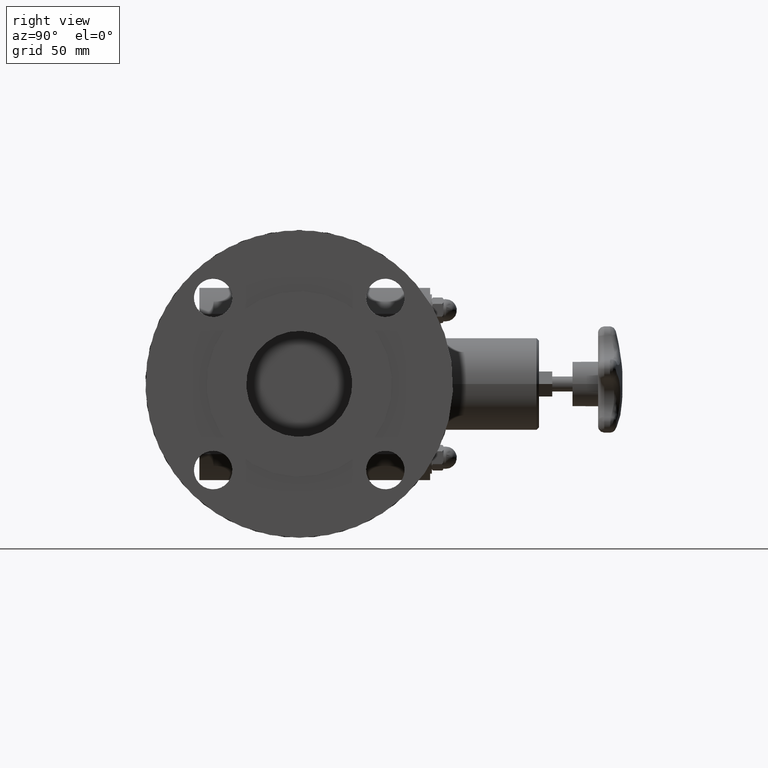
[diagram: clean part render]
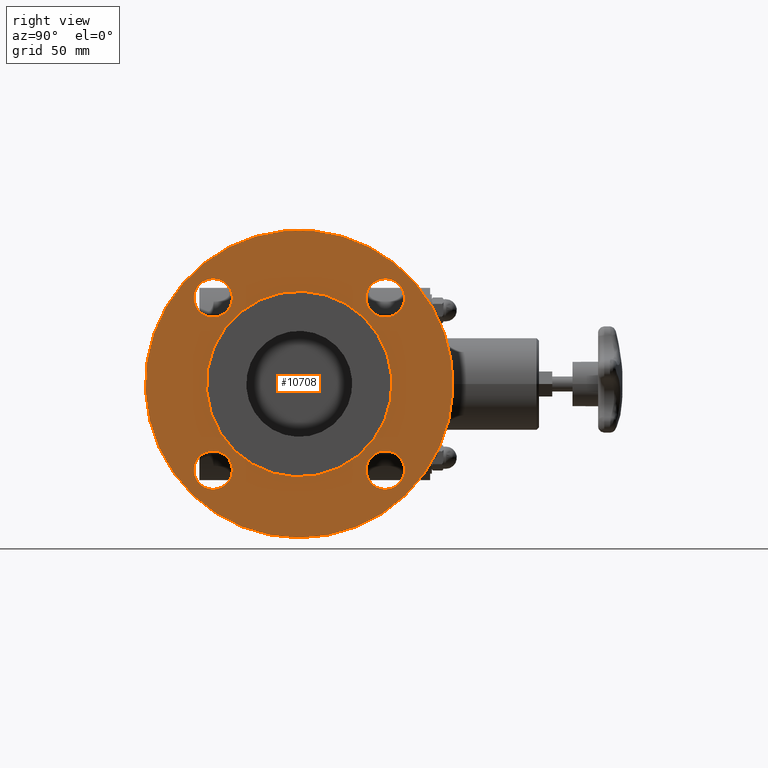
[diagram: same view with one face highlighted and labeled with its STEP entity id]
A machine part, right view. The second image highlights one B-rep face of the part: STEP entity #10708.
In plain terms, the highlighted planar face has unit normal (1, 0, 0).
Its self-contained STEP definition (entity closure, byte-faithful):
#10521=CARTESIAN_POINT('',(4.437500000010000,-0.091209716570484,1.784955929504104));
#10522=VERTEX_POINT('',#10521);
#10523=CARTESIAN_POINT('',(4.437500000010000,0.268621394674898,1.679378605325109));
#10524=DIRECTION('',(1.0,-3.734826E-016,3.734826E-016));
#10525=DIRECTION('',(-5.281841E-016,-0.707106781186553,0.707106781186542));
#10526=AXIS2_PLACEMENT_3D('',#10523,#10524,#10525);
#10527=CIRCLE('',#10526,0.375000000002000);
#10528=EDGE_CURVE('',#10522,#10522,#10527,.T.);
#10538=CARTESIAN_POINT('',(4.437500000010002,2.792618593429166,2.878648889965886));
#10539=VERTEX_POINT('',#10538);
#10540=CARTESIAN_POINT('',(4.437500000010002,1.948000000000034,9.943549E-016));
#10541=DIRECTION('',(1.0,-3.734826E-016,3.734826E-016));
#10542=DIRECTION('',(-5.281841E-016,-0.707106781186553,0.707106781186542));
#10543=AXIS2_PLACEMENT_3D('',#10540,#10541,#10542);
#10544=CIRCLE('',#10543,3.000000000010000);
#10545=EDGE_CURVE('',#10539,#10539,#10544,.T.);
#10649=CARTESIAN_POINT('',(4.437500000010002,2.457586551371866,1.736784830280833));
#10650=VERTEX_POINT('',#10649);
#10651=CARTESIAN_POINT('',(4.437500000010002,1.948000000000034,9.943549E-016));
#10652=DIRECTION('',(1.0,-3.734826E-016,3.734826E-016));
#10653=DIRECTION('',(-5.281841E-016,-0.707106781186553,0.707106781186542));
#10654=AXIS2_PLACEMENT_3D('',#10651,#10652,#10653);
#10655=CIRCLE('',#10654,1.810000000010001);
#10656=EDGE_CURVE('',#10650,#10650,#10655,.T.);
#10661=CARTESIAN_POINT('',(4.437500000010003,3.227863273954745,1.279863273954734));
#10662=DIRECTION('',(1.0,0.0,0.0));
#10663=DIRECTION('',(0.0,0.707106781186553,-0.707106781186542));
#10664=AXIS2_PLACEMENT_3D('',#10661,#10662,#10663);
#10665=PLANE('',#10664);
#10666=ORIENTED_EDGE('',*,*,#10545,.T.);
#10667=EDGE_LOOP('',(#10666));
#10668=FACE_OUTER_BOUND('',#10667,.T.);
#10669=ORIENTED_EDGE('',*,*,#10528,.F.);
#10670=EDGE_LOOP('',(#10669));
#10671=FACE_BOUND('',#10670,.T.);
#10672=ORIENTED_EDGE('',*,*,#10656,.F.);
#10673=EDGE_LOOP('',(#10672));
#10674=FACE_BOUND('',#10673,.T.);
#10675=CARTESIAN_POINT('',(4.437500000010001,0.163044070495931,-2.039209716570516));
#10676=VERTEX_POINT('',#10675);
#10677=CARTESIAN_POINT('',(4.437500000010001,0.268621394674926,-1.679378605325135));
#10678=DIRECTION('',(1.0,-3.734826E-016,3.734826E-016));
#10679=DIRECTION('',(-5.281841E-016,-0.707106781186553,0.707106781186542));
#10680=AXIS2_PLACEMENT_3D('',#10677,#10678,#10679);
#10681=CIRCLE('',#10680,0.375000000002000);
#10682=EDGE_CURVE('',#10676,#10676,#10681,.T.);
#10683=ORIENTED_EDGE('',*,*,#10682,.F.);
#10684=EDGE_LOOP('',(#10683));
#10685=FACE_BOUND('',#10684,.T.);
#10686=CARTESIAN_POINT('',(4.437500000010004,3.987209716570551,-1.784955929504102));
#10687=VERTEX_POINT('',#10686);
#10688=CARTESIAN_POINT('',(4.437500000010004,3.627378605325169,-1.679378605325107));
#10689=DIRECTION('',(1.0,-3.734826E-016,3.734826E-016));
#10690=DIRECTION('',(-5.281841E-016,-0.707106781186553,0.707106781186542));
#10691=AXIS2_PLACEMENT_3D('',#10688,#10689,#10690);
#10692=CIRCLE('',#10691,0.375000000001000);
#10693=EDGE_CURVE('',#10687,#10687,#10692,.T.);
#10694=ORIENTED_EDGE('',*,*,#10693,.F.);
#10695=EDGE_LOOP('',(#10694));
#10696=FACE_BOUND('',#10695,.T.);
#10697=CARTESIAN_POINT('',(4.437500000010003,3.732955929504136,2.039209716570519));
#10698=VERTEX_POINT('',#10697);
#10699=CARTESIAN_POINT('',(4.437500000010003,3.627378605325141,1.679378605325136));
#10700=DIRECTION('',(1.0,-3.734826E-016,3.734826E-016));
#10701=DIRECTION('',(-5.281841E-016,-0.707106781186553,0.707106781186542));
#10702=AXIS2_PLACEMENT_3D('',#10699,#10700,#10701);
#10703=CIRCLE('',#10702,0.375000000002000);
#10704=EDGE_CURVE('',#10698,#10698,#10703,.T.);
#10705=ORIENTED_EDGE('',*,*,#10704,.F.);
#10706=EDGE_LOOP('',(#10705));
#10707=FACE_BOUND('',#10706,.T.);
#10708=ADVANCED_FACE('',(#10668,#10671,#10674,#10685,#10696,#10707),#10665,.T.);